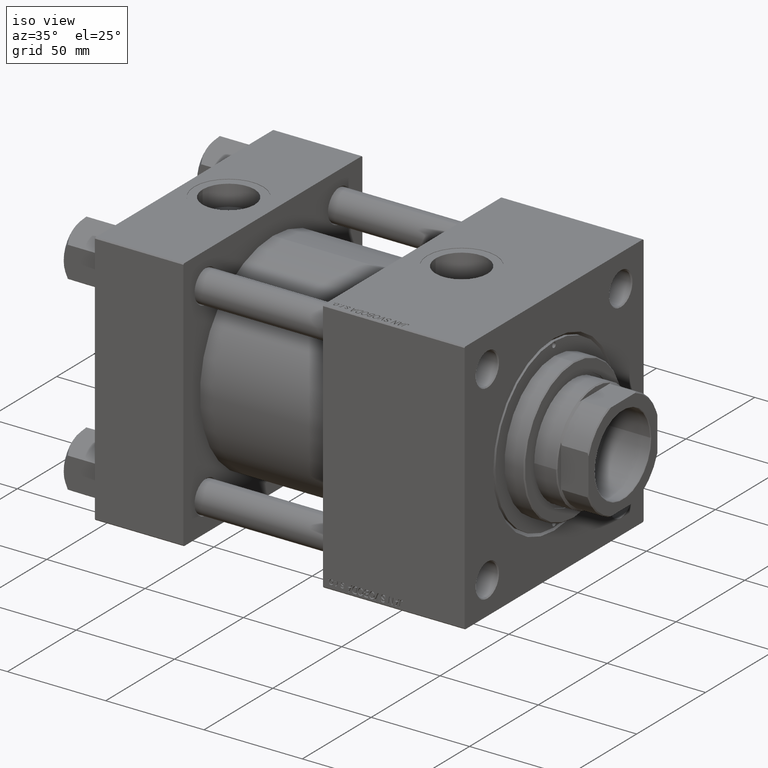
[diagram: clean part render]
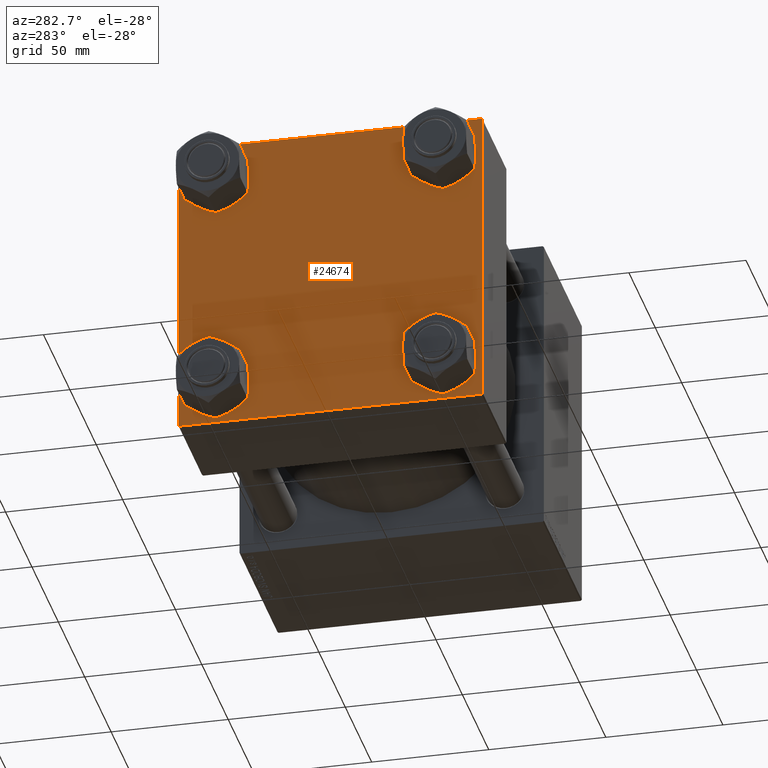
[diagram: tour spotlight — one face highlighted and labeled with its STEP entity id]
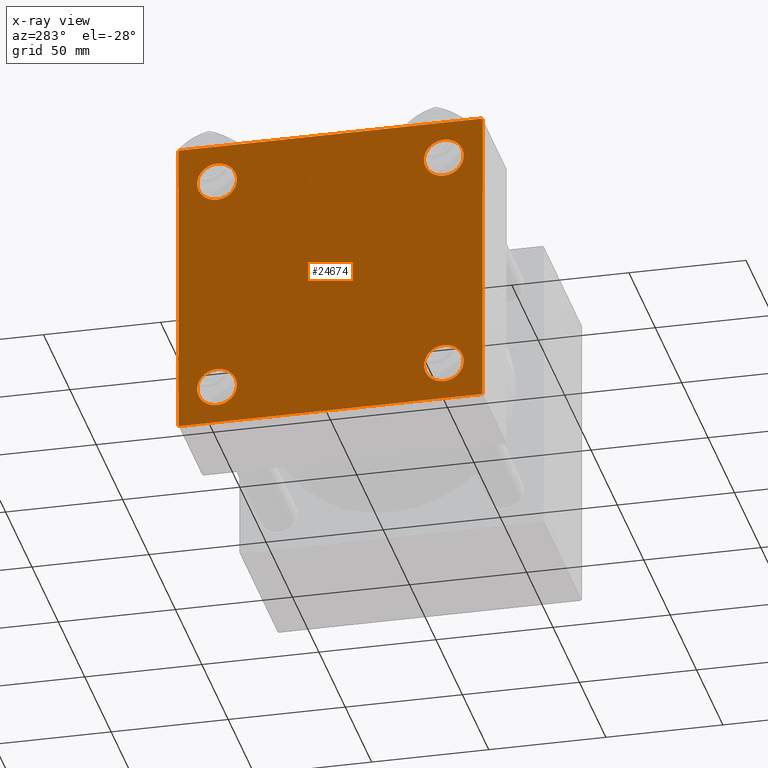
[diagram: x-ray of the same camera — body ghosted, this tour face saturated]
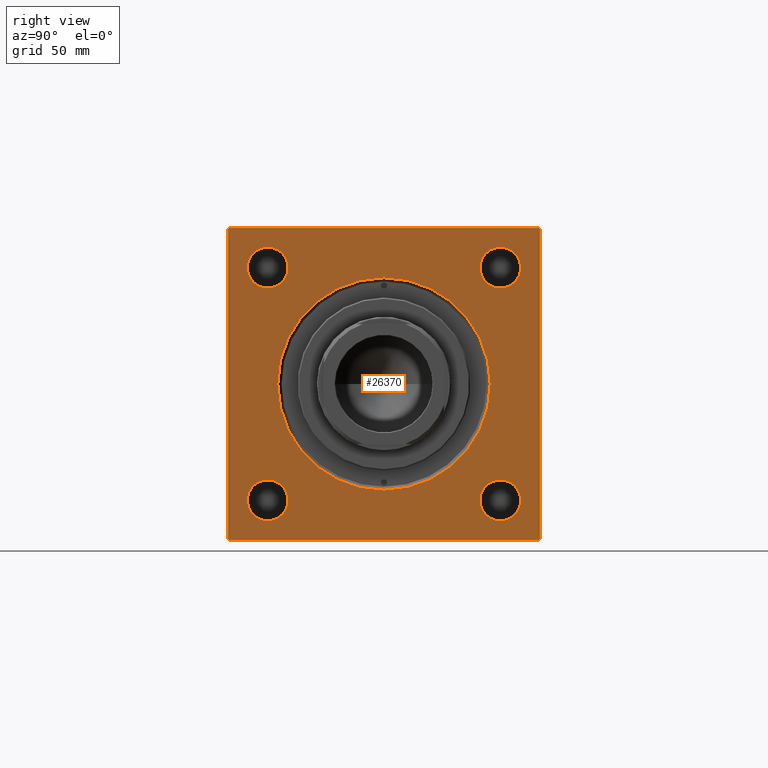
[diagram: tour spotlight — one face highlighted and labeled with its STEP entity id]
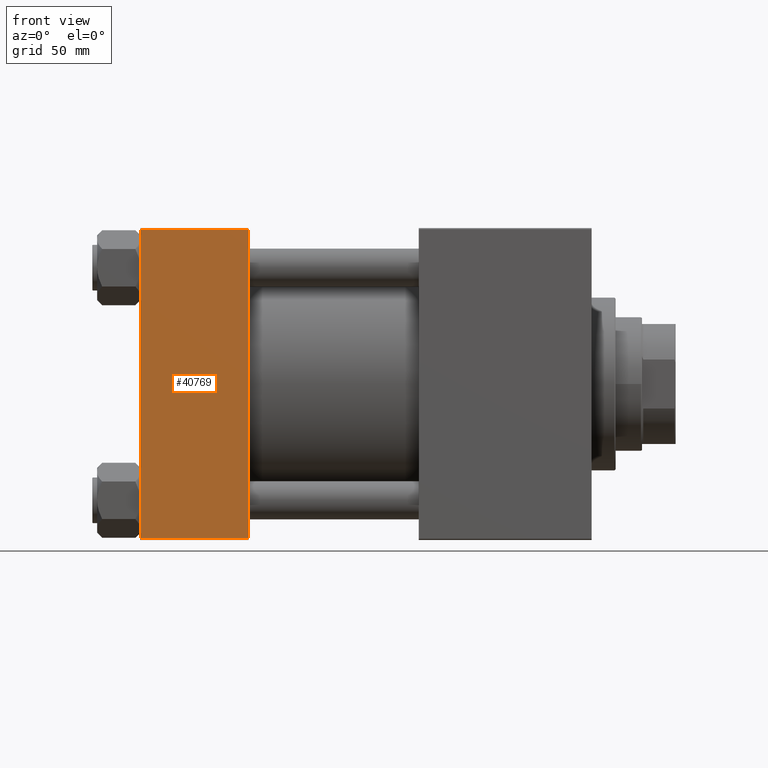
[diagram: tour spotlight — one face highlighted and labeled with its STEP entity id]
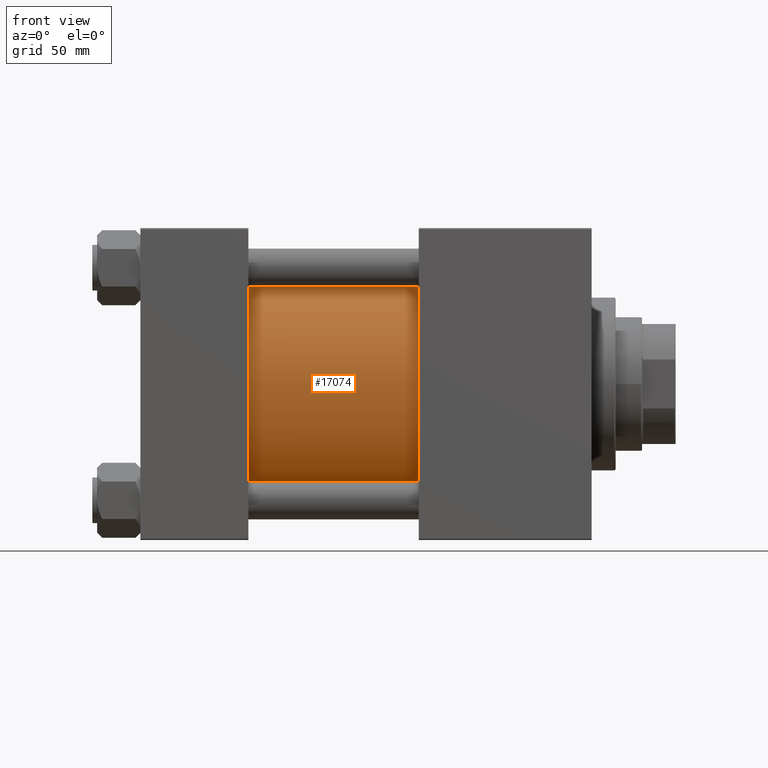
[diagram: tour spotlight — one face highlighted and labeled with its STEP entity id]
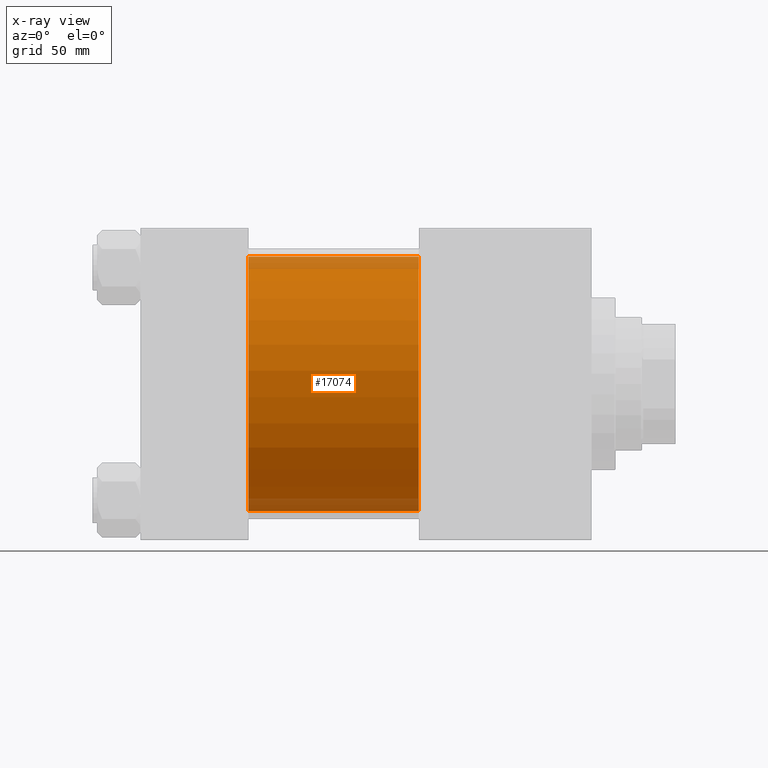
[diagram: x-ray of the same camera — body ghosted, this tour face saturated]
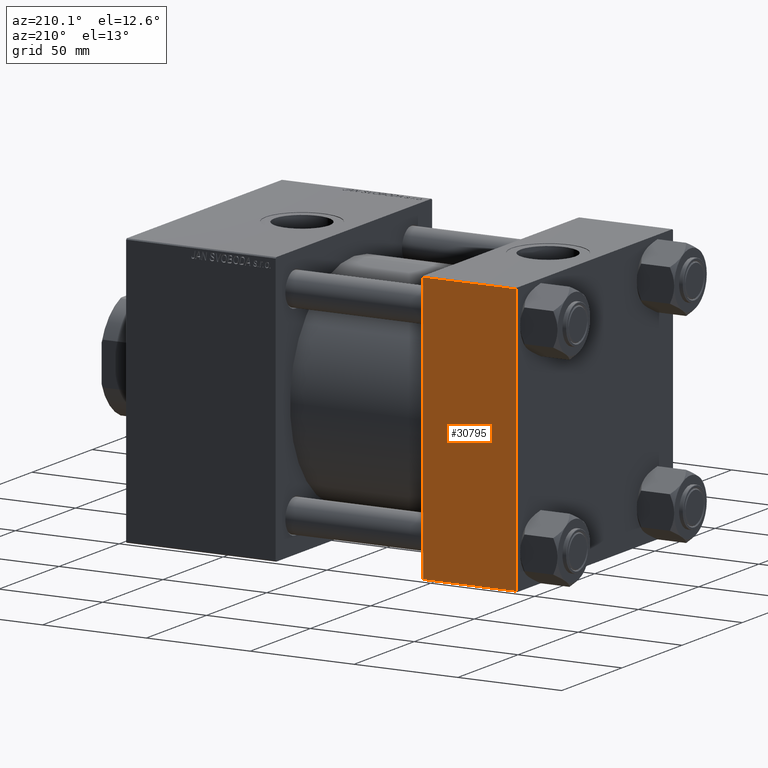
[diagram: tour spotlight — one face highlighted and labeled with its STEP entity id]
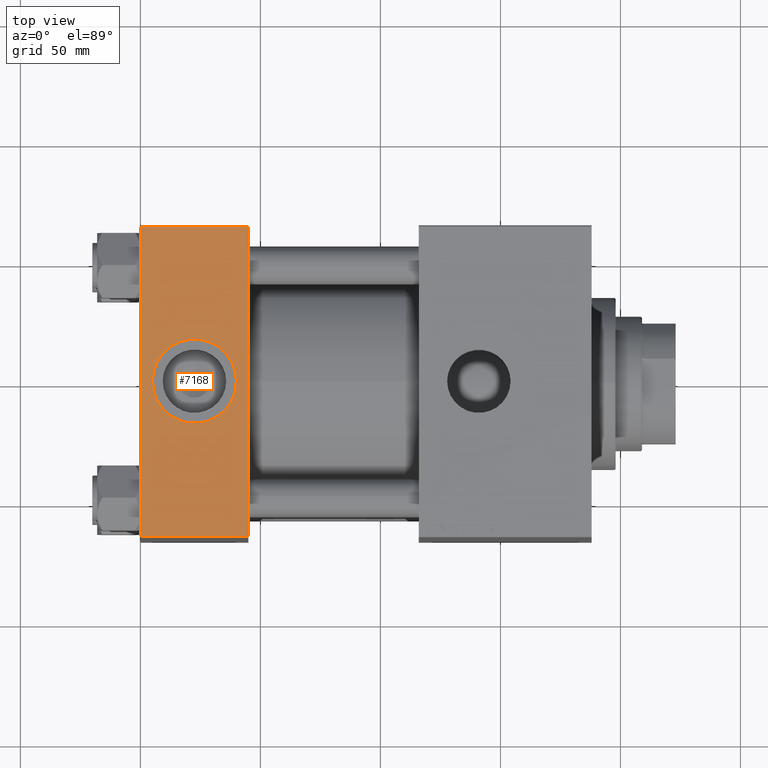
[diagram: tour spotlight — one face highlighted and labeled with its STEP entity id]
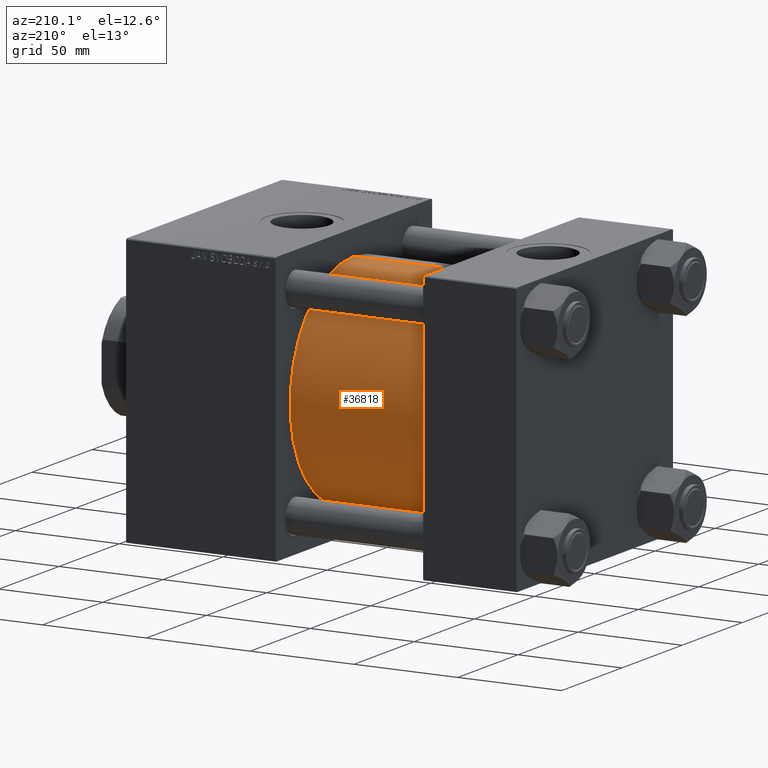
[diagram: tour spotlight — one face highlighted and labeled with its STEP entity id]
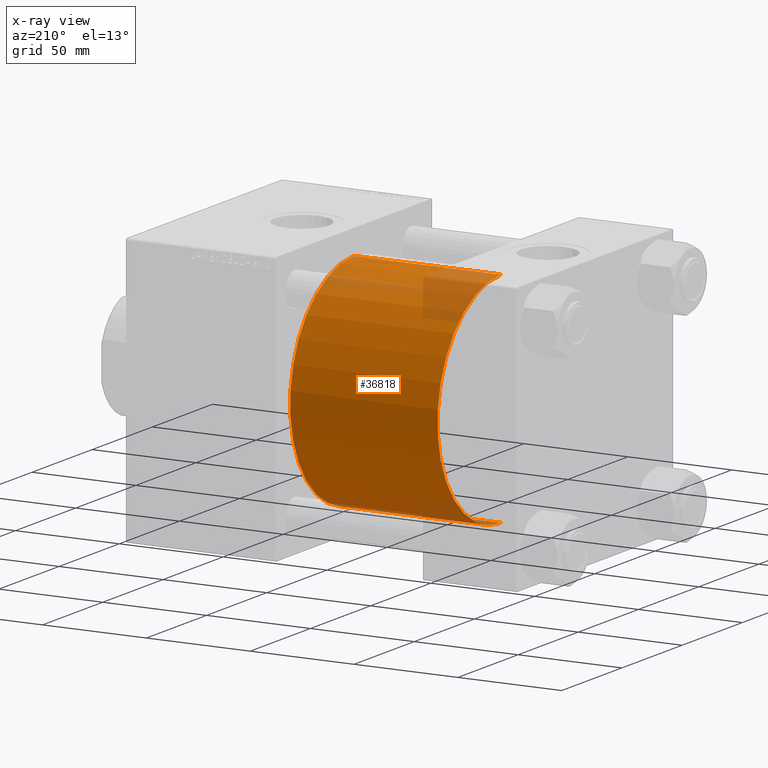
[diagram: x-ray of the same camera — body ghosted, this tour face saturated]
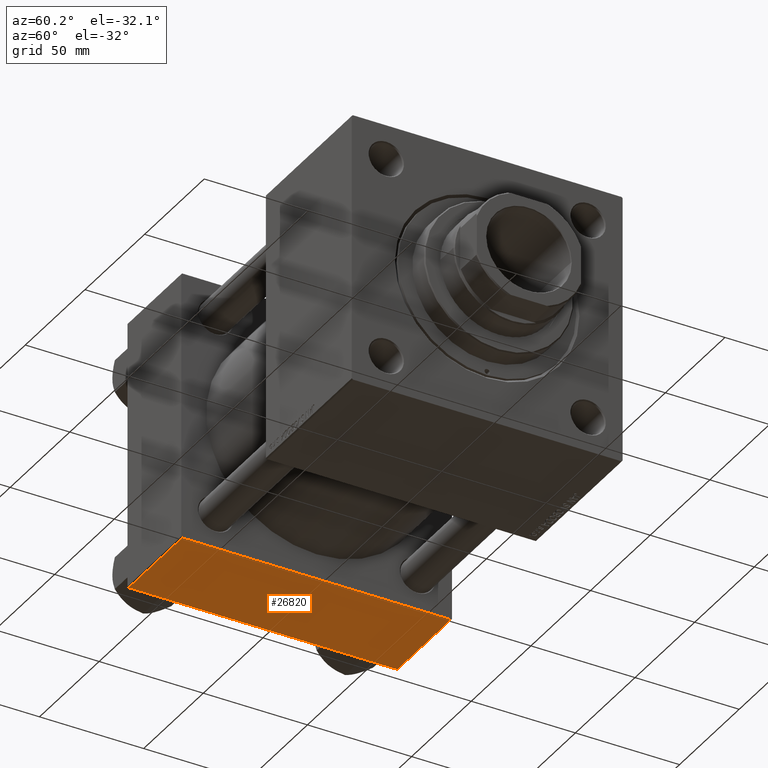
[diagram: tour spotlight — one face highlighted and labeled with its STEP entity id]
A machine part: a face-by-face anatomy tour. The part has 1202 B-rep faces; the first image is the clean iso view, then the 8 largest visible faces are spotlighted one at a time (largest first), each with its STEP entity span.

Face 1 — auxiliary view, entity #24674. An x-ray twin of the same camera follows (body ghosted, this face saturated) — the face is partly hidden behind the body. In plain terms, the highlighted planar face has unit normal (-1, 0, 0).
Definition (entity closure, byte-faithful):
#69 = DIRECTION ( 'NONE',  ( 1.000000000000000000, -0.000000000000000000, 0.000000000000000000 ) ) ;
#711 = DIRECTION ( 'NONE',  ( 1.000000000000000000, -0.000000000000000000, 0.000000000000000000 ) ) ;
#1310 = AXIS2_PLACEMENT_3D ( 'NONE', #46534, #11059, #3825 ) ;
#2402 = DIRECTION ( 'NONE',  ( -1.000000000000000000, 0.000000000000000000, -0.000000000000000000 ) ) ;
#3391 = CARTESIAN_POINT ( 'NONE',  ( 0.000000000000000000, -48.44999999999999574, -39.95000000000001705 ) ) ;
#3596 = DIRECTION ( 'NONE',  ( 1.000000000000000000, -0.000000000000000000, 0.000000000000000000 ) ) ;
#3743 = VECTOR ( 'NONE', #4455, 1000.000000000000000 ) ;
#3825 = DIRECTION ( 'NONE',  ( 0.000000000000000000, 0.000000000000000000, 1.000000000000000000 ) ) ;
#3926 = ORIENTED_EDGE ( 'NONE', *, *, #19025, .T. ) ;
#4237 = FACE_OUTER_BOUND ( 'NONE', #22528, .T. ) ;
#4308 = EDGE_CURVE ( 'NONE', #21398, #5108, #8317, .T. ) ;
#4455 = DIRECTION ( 'NONE',  ( 0.000000000000000000, 0.000000000000000000, -1.000000000000000000 ) ) ;
#4706 = EDGE_CURVE ( 'NONE', #24267, #15723, #35669, .T. ) ;
#5108 = VERTEX_POINT ( 'NONE', #44592 ) ;
#5130 = DIRECTION ( 'NONE',  ( 0.000000000000000000, -1.000000000000000000, -1.067522139062650425E-16 ) ) ;
#5341 = DIRECTION ( 'NONE',  ( 0.000000000000000000, -1.000000000000000000, -1.067522139062650425E-16 ) ) ;
#5390 = VECTOR ( 'NONE', #5341, 1000.000000000000000 ) ;
#5490 = CIRCLE ( 'NONE', #16157, 8.500000000000007105 ) ;
#5634 = EDGE_CURVE ( 'NONE', #21184, #8814, #48062, .T. ) ;
#5972 = ORIENTED_EDGE ( 'NONE', *, *, #28461, .T. ) ;
#6277 = EDGE_CURVE ( 'NONE', #47337, #13181, #34940, .T. ) ;
#6815 = AXIS2_PLACEMENT_3D ( 'NONE', #45732, #26437, #18709 ) ;
#6967 = DIRECTION ( 'NONE',  ( 0.000000000000000000, 0.000000000000000000, 1.000000000000000000 ) ) ;
#8317 = LINE ( 'NONE', #11414, #37332 ) ;
#8381 = DIRECTION ( 'NONE',  ( 0.000000000000000000, 0.000000000000000000, 1.000000000000000000 ) ) ;
#8415 = DIRECTION ( 'NONE',  ( 0.000000000000000000, 0.000000000000000000, 1.000000000000000000 ) ) ;
#8690 = AXIS2_PLACEMENT_3D ( 'NONE', #25809, #2402, #14245 ) ;
#8801 = VERTEX_POINT ( 'NONE', #29081 ) ;
#8814 = VERTEX_POINT ( 'NONE', #38552 ) ;
#9132 = FACE_BOUND ( 'NONE', #44782, .T. ) ;
#9452 = VERTEX_POINT ( 'NONE', #42731 ) ;
#10029 = VERTEX_POINT ( 'NONE', #46728 ) ;
#11032 = ORIENTED_EDGE ( 'NONE', *, *, #5634, .T. ) ;
#11059 = DIRECTION ( 'NONE',  ( 1.000000000000000000, -0.000000000000000000, 0.000000000000000000 ) ) ;
#11414 = CARTESIAN_POINT ( 'NONE',  ( 0.000000000000000000, 64.74999999999998579, 64.74999999999998579 ) ) ;
#11584 = EDGE_LOOP ( 'NONE', ( #11032, #5972 ) ) ;
#11863 = EDGE_CURVE ( 'NONE', #48390, #39491, #26900, .T. ) ;
#12193 = VERTEX_POINT ( 'NONE', #12890 ) ;
#12519 = DIRECTION ( 'NONE',  ( -0.000000000000000000, -0.7071067811865474617, -0.7071067811865474617 ) ) ;
#12890 = CARTESIAN_POINT ( 'NONE',  ( 0.000000000000000000, 48.45000000000000995, 56.95000000000002416 ) ) ;
#13023 = LINE ( 'NONE', #28205, #22956 ) ;
#13181 = VERTEX_POINT ( 'NONE', #22720 ) ;
#13931 = AXIS2_PLACEMENT_3D ( 'NONE', #43909, #711, #47253 ) ;
#14245 = DIRECTION ( 'NONE',  ( -0.000000000000000000, 0.000000000000000000, 1.000000000000000000 ) ) ;
#14383 = VERTEX_POINT ( 'NONE', #36817 ) ;
#15161 = ORIENTED_EDGE ( 'NONE', *, *, #20247, .T. ) ;
#15723 = VERTEX_POINT ( 'NONE', #42816 ) ;
#15894 = VECTOR ( 'NONE', #27204, 1000.000000000000000 ) ;
#16114 = CARTESIAN_POINT ( 'NONE',  ( -0.000000000000000000, -64.74999999999819522, 64.75000000000179057 ) ) ;
#16120 = CARTESIAN_POINT ( 'NONE',  ( 0.000000000000000000, 48.45000000000000995, 48.45000000000001705 ) ) ;
#16157 = AXIS2_PLACEMENT_3D ( 'NONE', #50849, #43620, #8381 ) ;
#16316 = PLANE ( 'NONE',  #8690 ) ;
#18398 = EDGE_CURVE ( 'NONE', #13181, #47337, #29003, .T. ) ;
#18709 = DIRECTION ( 'NONE',  ( 0.000000000000000000, 0.000000000000000000, 1.000000000000000000 ) ) ;
#18863 = VERTEX_POINT ( 'NONE', #29608 ) ;
#19025 = EDGE_CURVE ( 'NONE', #9452, #8801, #30617, .T. ) ;
#19193 = EDGE_CURVE ( 'NONE', #8801, #14383, #26184, .T. ) ;
#20247 = EDGE_CURVE ( 'NONE', #12193, #10029, #32380, .T. ) ;
#20479 = CARTESIAN_POINT ( 'NONE',  ( 0.000000000000000000, -65.00000000000000000, 64.50000000000000000 ) ) ;
#20503 = ORIENTED_EDGE ( 'NONE', *, *, #23797, .F. ) ;
#20858 = AXIS2_PLACEMENT_3D ( 'NONE', #16120, #43138, #8415 ) ;
#20922 = FACE_BOUND ( 'NONE', #21086, .T. ) ;
#21086 = EDGE_LOOP ( 'NONE', ( #15161, #33112 ) ) ;
#21184 = VERTEX_POINT ( 'NONE', #44834 ) ;
#21398 = VERTEX_POINT ( 'NONE', #36324 ) ;
#21661 = ORIENTED_EDGE ( 'NONE', *, *, #19193, .T. ) ;
#22528 = EDGE_LOOP ( 'NONE', ( #41351, #30434, #3926, #21661, #38477, #40735, #20503, #29175 ) ) ;
#22720 = CARTESIAN_POINT ( 'NONE',  ( 0.000000000000000000, 48.45000000000000995, -56.95000000000002416 ) ) ;
#22956 = VECTOR ( 'NONE', #12519, 1000.000000000000114 ) ;
#23129 = CARTESIAN_POINT ( 'NONE',  ( 0.000000000000000000, -48.44999999999999574, 48.45000000000003126 ) ) ;
#23613 = CARTESIAN_POINT ( 'NONE',  ( 0.000000000000000000, -48.44999999999999574, -56.95000000000003837 ) ) ;
#23695 = VECTOR ( 'NONE', #37731, 1000.000000000000000 ) ;
#23701 = DIRECTION ( 'NONE',  ( 0.000000000000000000, 0.000000000000000000, 1.000000000000000000 ) ) ;
#23763 = CIRCLE ( 'NONE', #13931, 8.500000000000007105 ) ;
#23797 = EDGE_CURVE ( 'NONE', #21398, #15723, #39808, .T. ) ;
#23962 = CARTESIAN_POINT ( 'NONE',  ( 0.000000000000000000, 48.45000000000000995, -48.45000000000001705 ) ) ;
#24267 = VERTEX_POINT ( 'NONE', #20479 ) ;
#24674 = ADVANCED_FACE ( 'NONE', ( #32522, #9132, #39471, #20922, #4237 ), #16316, .T. ) ;
#25809 = CARTESIAN_POINT ( 'NONE',  ( 0.000000000000000000, 0.000000000000000000, 0.000000000000000000 ) ) ;
#26184 = LINE ( 'NONE', #30565, #15894 ) ;
#26418 = ORIENTED_EDGE ( 'NONE', *, *, #29984, .T. ) ;
#26437 = DIRECTION ( 'NONE',  ( 1.000000000000000000, -0.000000000000000000, 0.000000000000000000 ) ) ;
#26670 = CARTESIAN_POINT ( 'NONE',  ( 0.000000000000000000, 65.00000000000000000, 65.00000000000001421 ) ) ;
#26900 = CIRCLE ( 'NONE', #31012, 8.500000000000007105 ) ;
#27204 = DIRECTION ( 'NONE',  ( 0.000000000000000000, -0.7071067811865279218, 0.7071067811865671127 ) ) ;
#27708 = EDGE_CURVE ( 'NONE', #5108, #18863, #49332, .T. ) ;
#28038 = ORIENTED_EDGE ( 'NONE', *, *, #18398, .T. ) ;
#28205 = CARTESIAN_POINT ( 'NONE',  ( 0.000000000000000000, 64.74999999999997158, -64.74999999999997158 ) ) ;
#28461 = EDGE_CURVE ( 'NONE', #8814, #21184, #37432, .T. ) ;
#29003 = CIRCLE ( 'NONE', #6815, 8.500000000000007105 ) ;
#29081 = CARTESIAN_POINT ( 'NONE',  ( 0.000000000000000000, -64.49999999999994316, -65.00000000000000000 ) ) ;
#29175 = ORIENTED_EDGE ( 'NONE', *, *, #4308, .T. ) ;
#29608 = CARTESIAN_POINT ( 'NONE',  ( 0.000000000000000000, 65.00000000000000000, -64.49999999999995737 ) ) ;
#29984 = EDGE_CURVE ( 'NONE', #39491, #48390, #5490, .T. ) ;
#30434 = ORIENTED_EDGE ( 'NONE', *, *, #49719, .T. ) ;
#30565 = CARTESIAN_POINT ( 'NONE',  ( 0.000000000000000000, -64.75000000000176215, -64.74999999999816680 ) ) ;
#30617 = LINE ( 'NONE', #46295, #45472 ) ;
#31012 = AXIS2_PLACEMENT_3D ( 'NONE', #39693, #44065, #43814 ) ;
#31614 = AXIS2_PLACEMENT_3D ( 'NONE', #23129, #3596, #6967 ) ;
#32380 = CIRCLE ( 'NONE', #20858, 8.500000000000007105 ) ;
#32522 = FACE_BOUND ( 'NONE', #11584, .T. ) ;
#33112 = ORIENTED_EDGE ( 'NONE', *, *, #45245, .T. ) ;
#34139 = LINE ( 'NONE', #49845, #23695 ) ;
#34940 = CIRCLE ( 'NONE', #44773, 8.500000000000007105 ) ;
#35669 = LINE ( 'NONE', #16114, #49643 ) ;
#35806 = EDGE_CURVE ( 'NONE', #24267, #14383, #34139, .T. ) ;
#36324 = CARTESIAN_POINT ( 'NONE',  ( 0.000000000000000000, 64.49999999999997158, 65.00000000000001421 ) ) ;
#36817 = CARTESIAN_POINT ( 'NONE',  ( 0.000000000000000000, -65.00000000000000000, -64.49999999999991473 ) ) ;
#37332 = VECTOR ( 'NONE', #47395, 1000.000000000000114 ) ;
#37432 = CIRCLE ( 'NONE', #1310, 8.500000000000007105 ) ;
#37731 = DIRECTION ( 'NONE',  ( 0.000000000000000000, 0.000000000000000000, -1.000000000000000000 ) ) ;
#38477 = ORIENTED_EDGE ( 'NONE', *, *, #35806, .F. ) ;
#38552 = CARTESIAN_POINT ( 'NONE',  ( 0.000000000000000000, -48.44999999999999574, 39.95000000000001705 ) ) ;
#39471 = FACE_BOUND ( 'NONE', #44742, .T. ) ;
#39491 = VERTEX_POINT ( 'NONE', #23613 ) ;
#39609 = ORIENTED_EDGE ( 'NONE', *, *, #6277, .T. ) ;
#39693 = CARTESIAN_POINT ( 'NONE',  ( 0.000000000000000000, -48.44999999999999574, -48.45000000000003126 ) ) ;
#39785 = DIRECTION ( 'NONE',  ( -0.000000000000000000, 0.7071067811865672237, 0.7071067811865279218 ) ) ;
#39808 = LINE ( 'NONE', #40319, #5390 ) ;
#40319 = CARTESIAN_POINT ( 'NONE',  ( 0.000000000000000000, 65.00000000000000000, 65.00000000000001421 ) ) ;
#40735 = ORIENTED_EDGE ( 'NONE', *, *, #4706, .T. ) ;
#41351 = ORIENTED_EDGE ( 'NONE', *, *, #27708, .T. ) ;
#42731 = CARTESIAN_POINT ( 'NONE',  ( 0.000000000000000000, 64.49999999999997158, -64.99999999999998579 ) ) ;
#42816 = CARTESIAN_POINT ( 'NONE',  ( 0.000000000000000000, -64.49999999999997158, 65.00000000000000000 ) ) ;
#43138 = DIRECTION ( 'NONE',  ( 1.000000000000000000, -0.000000000000000000, 0.000000000000000000 ) ) ;
#43455 = ORIENTED_EDGE ( 'NONE', *, *, #11863, .T. ) ;
#43620 = DIRECTION ( 'NONE',  ( 1.000000000000000000, -0.000000000000000000, 0.000000000000000000 ) ) ;
#43814 = DIRECTION ( 'NONE',  ( 0.000000000000000000, 0.000000000000000000, 1.000000000000000000 ) ) ;
#43909 = CARTESIAN_POINT ( 'NONE',  ( 0.000000000000000000, 48.45000000000000995, 48.45000000000001705 ) ) ;
#44065 = DIRECTION ( 'NONE',  ( 1.000000000000000000, -0.000000000000000000, 0.000000000000000000 ) ) ;
#44592 = CARTESIAN_POINT ( 'NONE',  ( 0.000000000000000000, 65.00000000000000000, 64.49999999999998579 ) ) ;
#44742 = EDGE_LOOP ( 'NONE', ( #39609, #28038 ) ) ;
#44773 = AXIS2_PLACEMENT_3D ( 'NONE', #23962, #69, #23701 ) ;
#44782 = EDGE_LOOP ( 'NONE', ( #43455, #26418 ) ) ;
#44834 = CARTESIAN_POINT ( 'NONE',  ( 0.000000000000000000, -48.44999999999999574, 56.95000000000003837 ) ) ;
#45245 = EDGE_CURVE ( 'NONE', #10029, #12193, #23763, .T. ) ;
#45472 = VECTOR ( 'NONE', #5130, 1000.000000000000000 ) ;
#45732 = CARTESIAN_POINT ( 'NONE',  ( 0.000000000000000000, 48.45000000000000995, -48.45000000000001705 ) ) ;
#46295 = CARTESIAN_POINT ( 'NONE',  ( 0.000000000000000000, 65.00000000000000000, -64.99999999999998579 ) ) ;
#46532 = CARTESIAN_POINT ( 'NONE',  ( 0.000000000000000000, 48.45000000000000995, -39.95000000000000284 ) ) ;
#46534 = CARTESIAN_POINT ( 'NONE',  ( 0.000000000000000000, -48.44999999999999574, 48.45000000000003126 ) ) ;
#46728 = CARTESIAN_POINT ( 'NONE',  ( 0.000000000000000000, 48.45000000000000995, 39.95000000000000284 ) ) ;
#47253 = DIRECTION ( 'NONE',  ( 0.000000000000000000, 0.000000000000000000, 1.000000000000000000 ) ) ;
#47337 = VERTEX_POINT ( 'NONE', #46532 ) ;
#47395 = DIRECTION ( 'NONE',  ( 0.000000000000000000, 0.7071067811865474617, -0.7071067811865474617 ) ) ;
#48062 = CIRCLE ( 'NONE', #31614, 8.500000000000007105 ) ;
#48390 = VERTEX_POINT ( 'NONE', #3391 ) ;
#49332 = LINE ( 'NONE', #26670, #3743 ) ;
#49643 = VECTOR ( 'NONE', #39785, 1000.000000000000000 ) ;
#49719 = EDGE_CURVE ( 'NONE', #18863, #9452, #13023, .T. ) ;
#49845 = CARTESIAN_POINT ( 'NONE',  ( 0.000000000000000000, -65.00000000000000000, 65.00000000000000000 ) ) ;
#50849 = CARTESIAN_POINT ( 'NONE',  ( 0.000000000000000000, -48.44999999999999574, -48.45000000000003126 ) ) ;

Face 2 — right view, entity #26370. In plain terms, the highlighted planar face has unit normal (-1, 0, 0).
Definition (entity closure, byte-faithful):
#216 = DIRECTION ( 'NONE',  ( -1.000000000000000000, 0.000000000000000000, -0.000000000000000000 ) ) ;
#467 = DIRECTION ( 'NONE',  ( -1.000000000000000000, 0.000000000000000000, -0.000000000000000000 ) ) ;
#688 = LINE ( 'NONE', #4798, #32104 ) ;
#731 = EDGE_LOOP ( 'NONE', ( #1337, #46602 ) ) ;
#951 = EDGE_CURVE ( 'NONE', #13994, #3356, #31457, .T. ) ;
#1337 = ORIENTED_EDGE ( 'NONE', *, *, #16942, .T. ) ;
#1363 = DIRECTION ( 'NONE',  ( -1.000000000000000000, 0.000000000000000000, -0.000000000000000000 ) ) ;
#1465 = CIRCLE ( 'NONE', #7981, 8.499999999999923617 ) ;
#1639 = VECTOR ( 'NONE', #26005, 1000.000000000000000 ) ;
#2672 = ORIENTED_EDGE ( 'NONE', *, *, #15333, .T. ) ;
#2813 = VECTOR ( 'NONE', #42780, 1000.000000000000000 ) ;
#3207 = DIRECTION ( 'NONE',  ( -0.000000000000000000, 0.7071067811865671127, 0.7071067811865279218 ) ) ;
#3322 = CARTESIAN_POINT ( 'NONE',  ( 188.0000000000000000, -64.50000000000008527, 65.00000000000000000 ) ) ;
#3356 = VERTEX_POINT ( 'NONE', #29131 ) ;
#3911 = VERTEX_POINT ( 'NONE', #50841 ) ;
#4242 = EDGE_CURVE ( 'NONE', #34268, #44244, #15500, .T. ) ;
#4798 = CARTESIAN_POINT ( 'NONE',  ( 188.0000000000000000, -64.99999999999998579, 65.00000000000000000 ) ) ;
#5017 = CARTESIAN_POINT ( 'NONE',  ( 188.0000000000000000, -48.45000000000001705, -48.45000000000001705 ) ) ;
#5072 = EDGE_CURVE ( 'NONE', #46401, #44244, #35877, .T. ) ;
#5789 = FACE_BOUND ( 'NONE', #39917, .T. ) ;
#5938 = AXIS2_PLACEMENT_3D ( 'NONE', #26821, #34291, #46614 ) ;
#6134 = VECTOR ( 'NONE', #44101, 1000.000000000000000 ) ;
#6286 = VECTOR ( 'NONE', #8974, 1000.000000000000000 ) ;
#7001 = AXIS2_PLACEMENT_3D ( 'NONE', #17972, #14122, #29820 ) ;
#7981 = AXIS2_PLACEMENT_3D ( 'NONE', #21222, #37454, #33588 ) ;
#8363 = VERTEX_POINT ( 'NONE', #15252 ) ;
#8676 = DIRECTION ( 'NONE',  ( -1.000000000000000000, 0.000000000000000000, -0.000000000000000000 ) ) ;
#8974 = DIRECTION ( 'NONE',  ( 0.000000000000000000, -1.000000000000000000, -1.067522139062650425E-16 ) ) ;
#9163 = CARTESIAN_POINT ( 'NONE',  ( 188.0000000000000000, 48.45000000000000995, -39.95000000000008811 ) ) ;
#9284 = AXIS2_PLACEMENT_3D ( 'NONE', #13040, #8676, #28731 ) ;
#9586 = LINE ( 'NONE', #37853, #25233 ) ;
#9747 = VECTOR ( 'NONE', #10401, 999.9999999999998863 ) ;
#10271 = ORIENTED_EDGE ( 'NONE', *, *, #41458, .T. ) ;
#10401 = DIRECTION ( 'NONE',  ( -0.000000000000000000, -0.7071067811865376918, -0.7071067811865574537 ) ) ;
#10964 = EDGE_CURVE ( 'NONE', #28601, #46885, #9586, .T. ) ;
#11120 = ORIENTED_EDGE ( 'NONE', *, *, #10964, .T. ) ;
#11363 = AXIS2_PLACEMENT_3D ( 'NONE', #20631, #1363, #39935 ) ;
#12306 = VERTEX_POINT ( 'NONE', #49907 ) ;
#12686 = EDGE_LOOP ( 'NONE', ( #37665, #38638 ) ) ;
#12994 = FACE_BOUND ( 'NONE', #12686, .T. ) ;
#13040 = CARTESIAN_POINT ( 'NONE',  ( 188.0000000000000000, 0.000000000000000000, 0.000000000000000000 ) ) ;
#13172 = LINE ( 'NONE', #17783, #1639 ) ;
#13845 = CARTESIAN_POINT ( 'NONE',  ( 188.0000000000000000, 65.00000000000002842, 65.00000000000001421 ) ) ;
#13994 = VERTEX_POINT ( 'NONE', #9163 ) ;
#14122 = DIRECTION ( 'NONE',  ( -1.000000000000000000, 0.000000000000000000, -0.000000000000000000 ) ) ;
#14947 = CARTESIAN_POINT ( 'NONE',  ( 188.0000000000000000, 64.50000000000002842, -64.99999999999998579 ) ) ;
#15128 = DIRECTION ( 'NONE',  ( -1.000000000000000000, 0.000000000000000000, -0.000000000000000000 ) ) ;
#15252 = CARTESIAN_POINT ( 'NONE',  ( 188.0000000000000000, -48.44999999999998153, 56.94999999999991047 ) ) ;
#15333 = EDGE_CURVE ( 'NONE', #35267, #36929, #21941, .T. ) ;
#15375 = CARTESIAN_POINT ( 'NONE',  ( 188.0000000000000000, -48.44999999999998153, 48.44999999999998863 ) ) ;
#15500 = LINE ( 'NONE', #23978, #2813 ) ;
#15644 = EDGE_CURVE ( 'NONE', #8363, #25637, #1465, .T. ) ;
#15875 = DIRECTION ( 'NONE',  ( 0.000000000000000000, 0.000000000000000000, 1.000000000000000000 ) ) ;
#16137 = DIRECTION ( 'NONE',  ( 0.000000000000000000, 0.000000000000000000, 1.000000000000000000 ) ) ;
#16329 = CARTESIAN_POINT ( 'NONE',  ( 188.0000000000000000, 0.000000000000000000, 0.000000000000000000 ) ) ;
#16617 = EDGE_CURVE ( 'NONE', #20714, #3911, #43762, .T. ) ;
#16942 = EDGE_CURVE ( 'NONE', #12306, #48717, #24010, .T. ) ;
#17338 = CIRCLE ( 'NONE', #27906, 8.499999999999923617 ) ;
#17647 = CIRCLE ( 'NONE', #7001, 8.499999999999923617 ) ;
#17783 = CARTESIAN_POINT ( 'NONE',  ( 188.0000000000000000, 65.00000000000002842, 65.00000000000001421 ) ) ;
#17972 = CARTESIAN_POINT ( 'NONE',  ( 188.0000000000000000, 48.45000000000000995, -48.45000000000001705 ) ) ;
#18732 = DIRECTION ( 'NONE',  ( 0.000000000000000000, 0.000000000000000000, 1.000000000000000000 ) ) ;
#19737 = CARTESIAN_POINT ( 'NONE',  ( 188.0000000000000000, 48.45000000000000995, 48.45000000000001705 ) ) ;
#20432 = DIRECTION ( 'NONE',  ( -1.000000000000000000, 0.000000000000000000, -0.000000000000000000 ) ) ;
#20631 = CARTESIAN_POINT ( 'NONE',  ( 188.0000000000000000, 48.45000000000000995, 48.45000000000001705 ) ) ;
#20684 = DIRECTION ( 'NONE',  ( 0.000000000000000000, 0.000000000000000000, 1.000000000000000000 ) ) ;
#20714 = VERTEX_POINT ( 'NONE', #38651 ) ;
#21222 = CARTESIAN_POINT ( 'NONE',  ( 188.0000000000000000, -48.44999999999998153, 48.44999999999998863 ) ) ;
#21261 = EDGE_LOOP ( 'NONE', ( #38393, #36064, #33503, #26273, #50022, #11120, #23937, #48369 ) ) ;
#21941 = CIRCLE ( 'NONE', #40860, 8.499999999999923617 ) ;
#22295 = CARTESIAN_POINT ( 'NONE',  ( 188.0000000000000000, 65.00000000000002842, 64.50000000000001421 ) ) ;
#22718 = EDGE_LOOP ( 'NONE', ( #2672, #45878 ) ) ;
#22737 = LINE ( 'NONE', #31226, #34454 ) ;
#22813 = EDGE_CURVE ( 'NONE', #3356, #13994, #17647, .T. ) ;
#22842 = VERTEX_POINT ( 'NONE', #39281 ) ;
#23702 = CARTESIAN_POINT ( 'NONE',  ( 188.0000000000000000, -48.44999999999998153, 39.95000000000005969 ) ) ;
#23782 = EDGE_CURVE ( 'NONE', #3911, #20714, #41502, .T. ) ;
#23937 = ORIENTED_EDGE ( 'NONE', *, *, #30566, .T. ) ;
#23978 = CARTESIAN_POINT ( 'NONE',  ( 188.0000000000000000, -64.50000000000002842, -65.00000000000001421 ) ) ;
#24010 = CIRCLE ( 'NONE', #32263, 8.499999999999923617 ) ;
#24172 = DIRECTION ( 'NONE',  ( -1.000000000000000000, 0.000000000000000000, -0.000000000000000000 ) ) ;
#24299 = AXIS2_PLACEMENT_3D ( 'NONE', #16329, #20432, #40499 ) ;
#24984 = CARTESIAN_POINT ( 'NONE',  ( 188.0000000000000000, -64.99999999999998579, -64.50000000000002842 ) ) ;
#25233 = VECTOR ( 'NONE', #25254, 1000.000000000000000 ) ;
#25254 = DIRECTION ( 'NONE',  ( 0.000000000000000000, -0.7071067811865279218, 0.7071067811865671127 ) ) ;
#25545 = EDGE_LOOP ( 'NONE', ( #39431, #38008 ) ) ;
#25637 = VERTEX_POINT ( 'NONE', #23702 ) ;
#26005 = DIRECTION ( 'NONE',  ( 0.000000000000000000, 0.000000000000000000, -1.000000000000000000 ) ) ;
#26273 = ORIENTED_EDGE ( 'NONE', *, *, #37057, .T. ) ;
#26370 = ADVANCED_FACE ( 'NONE', ( #28940, #5789, #32031, #12994, #40257, #48744 ), #44115, .F. ) ;
#26821 = CARTESIAN_POINT ( 'NONE',  ( 188.0000000000000000, -48.45000000000001705, -48.45000000000001705 ) ) ;
#27906 = AXIS2_PLACEMENT_3D ( 'NONE', #15375, #15128, #18732 ) ;
#28113 = CIRCLE ( 'NONE', #5938, 8.499999999999923617 ) ;
#28201 = AXIS2_PLACEMENT_3D ( 'NONE', #43753, #24172, #39887 ) ;
#28413 = CARTESIAN_POINT ( 'NONE',  ( 188.0000000000000000, 65.00000000000002842, -64.99999999999998579 ) ) ;
#28601 = VERTEX_POINT ( 'NONE', #22295 ) ;
#28731 = DIRECTION ( 'NONE',  ( 0.000000000000000000, 0.000000000000000000, 1.000000000000000000 ) ) ;
#28940 = FACE_BOUND ( 'NONE', #22718, .T. ) ;
#29131 = CARTESIAN_POINT ( 'NONE',  ( 188.0000000000000000, 48.45000000000000995, -56.94999999999993889 ) ) ;
#29820 = DIRECTION ( 'NONE',  ( 0.000000000000000000, 0.000000000000000000, 1.000000000000000000 ) ) ;
#30566 = EDGE_CURVE ( 'NONE', #46885, #47351, #44201, .T. ) ;
#31071 = CIRCLE ( 'NONE', #11363, 8.499999999999923617 ) ;
#31226 = CARTESIAN_POINT ( 'NONE',  ( 188.0000000000000000, 65.00000000000002842, -64.50000000000001421 ) ) ;
#31457 = CIRCLE ( 'NONE', #28201, 8.499999999999923617 ) ;
#32031 = FACE_BOUND ( 'NONE', #731, .T. ) ;
#32061 = DIRECTION ( 'NONE',  ( 0.000000000000000000, 0.000000000000000000, -1.000000000000000000 ) ) ;
#32104 = VECTOR ( 'NONE', #32061, 1000.000000000000000 ) ;
#32263 = AXIS2_PLACEMENT_3D ( 'NONE', #5017, #40241, #20684 ) ;
#32306 = CARTESIAN_POINT ( 'NONE',  ( 188.0000000000000000, -48.45000000000001705, -39.95000000000008811 ) ) ;
#32563 = CARTESIAN_POINT ( 'NONE',  ( 188.0000000000000000, 48.45000000000000995, 56.94999999999993889 ) ) ;
#33503 = ORIENTED_EDGE ( 'NONE', *, *, #5072, .F. ) ;
#33588 = DIRECTION ( 'NONE',  ( 0.000000000000000000, 0.000000000000000000, 1.000000000000000000 ) ) ;
#33769 = CARTESIAN_POINT ( 'NONE',  ( 188.0000000000000000, 65.00000000000002842, -64.50000000000001421 ) ) ;
#33994 = CARTESIAN_POINT ( 'NONE',  ( 188.0000000000000000, 48.45000000000000995, 39.95000000000008811 ) ) ;
#34090 = EDGE_CURVE ( 'NONE', #47351, #22842, #42260, .T. ) ;
#34268 = VERTEX_POINT ( 'NONE', #24984 ) ;
#34284 = EDGE_CURVE ( 'NONE', #36929, #35267, #31071, .T. ) ;
#34291 = DIRECTION ( 'NONE',  ( -1.000000000000000000, 0.000000000000000000, -0.000000000000000000 ) ) ;
#34454 = VECTOR ( 'NONE', #3207, 1000.000000000000000 ) ;
#34887 = CARTESIAN_POINT ( 'NONE',  ( 188.0000000000000000, 64.50000000000005684, 65.00000000000001421 ) ) ;
#35267 = VERTEX_POINT ( 'NONE', #33994 ) ;
#35877 = LINE ( 'NONE', #28413, #6134 ) ;
#36064 = ORIENTED_EDGE ( 'NONE', *, *, #4242, .T. ) ;
#36929 = VERTEX_POINT ( 'NONE', #32563 ) ;
#37057 = EDGE_CURVE ( 'NONE', #46401, #43830, #22737, .T. ) ;
#37454 = DIRECTION ( 'NONE',  ( -1.000000000000000000, 0.000000000000000000, -0.000000000000000000 ) ) ;
#37665 = ORIENTED_EDGE ( 'NONE', *, *, #22813, .T. ) ;
#37820 = CARTESIAN_POINT ( 'NONE',  ( 188.0000000000000000, -64.50000000000002842, -65.00000000000001421 ) ) ;
#37853 = CARTESIAN_POINT ( 'NONE',  ( 188.0000000000000000, 64.50000000000005684, 65.00000000000001421 ) ) ;
#38008 = ORIENTED_EDGE ( 'NONE', *, *, #23782, .T. ) ;
#38393 = ORIENTED_EDGE ( 'NONE', *, *, #49702, .T. ) ;
#38409 = CARTESIAN_POINT ( 'NONE',  ( 188.0000000000000000, -64.99999999999998579, 64.50000000000008527 ) ) ;
#38638 = ORIENTED_EDGE ( 'NONE', *, *, #951, .T. ) ;
#38651 = CARTESIAN_POINT ( 'NONE',  ( 188.0000000000000000, 0.000000000000000000, -44.24999999999998579 ) ) ;
#39038 = AXIS2_PLACEMENT_3D ( 'NONE', #39041, #467, #16137 ) ;
#39041 = CARTESIAN_POINT ( 'NONE',  ( 188.0000000000000000, 0.000000000000000000, 0.000000000000000000 ) ) ;
#39281 = CARTESIAN_POINT ( 'NONE',  ( 188.0000000000000000, -64.99999999999998579, 64.50000000000008527 ) ) ;
#39431 = ORIENTED_EDGE ( 'NONE', *, *, #16617, .T. ) ;
#39887 = DIRECTION ( 'NONE',  ( 0.000000000000000000, 0.000000000000000000, 1.000000000000000000 ) ) ;
#39917 = EDGE_LOOP ( 'NONE', ( #10271, #43144 ) ) ;
#39935 = DIRECTION ( 'NONE',  ( 0.000000000000000000, 0.000000000000000000, 1.000000000000000000 ) ) ;
#40241 = DIRECTION ( 'NONE',  ( -1.000000000000000000, 0.000000000000000000, -0.000000000000000000 ) ) ;
#40257 = FACE_BOUND ( 'NONE', #25545, .T. ) ;
#40499 = DIRECTION ( 'NONE',  ( -0.000000000000000000, 0.000000000000000000, 1.000000000000000000 ) ) ;
#40860 = AXIS2_PLACEMENT_3D ( 'NONE', #19737, #216, #15875 ) ;
#41458 = EDGE_CURVE ( 'NONE', #25637, #8363, #17338, .T. ) ;
#41502 = CIRCLE ( 'NONE', #39038, 44.24999999999998579 ) ;
#42260 = LINE ( 'NONE', #38409, #9747 ) ;
#42780 = DIRECTION ( 'NONE',  ( 0.000000000000000000, 0.7071067811865279218, -0.7071067811865672237 ) ) ;
#43144 = ORIENTED_EDGE ( 'NONE', *, *, #15644, .T. ) ;
#43753 = CARTESIAN_POINT ( 'NONE',  ( 188.0000000000000000, 48.45000000000000995, -48.45000000000001705 ) ) ;
#43762 = CIRCLE ( 'NONE', #9284, 44.24999999999998579 ) ;
#43830 = VERTEX_POINT ( 'NONE', #33769 ) ;
#44101 = DIRECTION ( 'NONE',  ( 0.000000000000000000, -1.000000000000000000, -2.135044278125300850E-16 ) ) ;
#44115 = PLANE ( 'NONE',  #24299 ) ;
#44201 = LINE ( 'NONE', #13845, #6286 ) ;
#44244 = VERTEX_POINT ( 'NONE', #37820 ) ;
#44705 = EDGE_CURVE ( 'NONE', #48717, #12306, #28113, .T. ) ;
#45492 = EDGE_CURVE ( 'NONE', #28601, #43830, #13172, .T. ) ;
#45878 = ORIENTED_EDGE ( 'NONE', *, *, #34284, .T. ) ;
#46401 = VERTEX_POINT ( 'NONE', #14947 ) ;
#46602 = ORIENTED_EDGE ( 'NONE', *, *, #44705, .T. ) ;
#46614 = DIRECTION ( 'NONE',  ( 0.000000000000000000, 0.000000000000000000, 1.000000000000000000 ) ) ;
#46885 = VERTEX_POINT ( 'NONE', #34887 ) ;
#47351 = VERTEX_POINT ( 'NONE', #3322 ) ;
#48369 = ORIENTED_EDGE ( 'NONE', *, *, #34090, .T. ) ;
#48717 = VERTEX_POINT ( 'NONE', #32306 ) ;
#48744 = FACE_OUTER_BOUND ( 'NONE', #21261, .T. ) ;
#49702 = EDGE_CURVE ( 'NONE', #22842, #34268, #688, .T. ) ;
#49907 = CARTESIAN_POINT ( 'NONE',  ( 188.0000000000000000, -48.45000000000001705, -56.94999999999993889 ) ) ;
#50022 = ORIENTED_EDGE ( 'NONE', *, *, #45492, .F. ) ;
#50841 = CARTESIAN_POINT ( 'NONE',  ( 188.0000000000000000, 5.419062086227035828E-15, 44.24999999999998579 ) ) ;

Face 3 — front view, entity #40769. In plain terms, the highlighted planar face has unit normal (0, 1, 0).
Definition (entity closure, byte-faithful):
#1709 = EDGE_CURVE ( 'NONE', #34447, #24267, #10894, .T. ) ;
#1977 = PLANE ( 'NONE',  #17304 ) ;
#2483 = CARTESIAN_POINT ( 'NONE',  ( 45.00000000000000000, -65.00000000000000000, 65.00000000000000000 ) ) ;
#6136 = ORIENTED_EDGE ( 'NONE', *, *, #1709, .T. ) ;
#8435 = CARTESIAN_POINT ( 'NONE',  ( 45.00000000000000000, -65.00000000000000000, 64.50000000000000000 ) ) ;
#9450 = FACE_OUTER_BOUND ( 'NONE', #23465, .T. ) ;
#9936 = VECTOR ( 'NONE', #11377, 1000.000000000000000 ) ;
#9961 = DIRECTION ( 'NONE',  ( -0.000000000000000000, 1.000000000000000000, 0.000000000000000000 ) ) ;
#10894 = LINE ( 'NONE', #50257, #11061 ) ;
#11061 = VECTOR ( 'NONE', #14492, 1000.000000000000000 ) ;
#11377 = DIRECTION ( 'NONE',  ( 0.000000000000000000, 0.000000000000000000, -1.000000000000000000 ) ) ;
#11992 = ORIENTED_EDGE ( 'NONE', *, *, #40167, .F. ) ;
#14383 = VERTEX_POINT ( 'NONE', #36817 ) ;
#14492 = DIRECTION ( 'NONE',  ( -1.000000000000000000, 0.000000000000000000, 0.000000000000000000 ) ) ;
#14695 = CARTESIAN_POINT ( 'NONE',  ( 45.00000000000000000, -65.00000000000000000, -64.49999999999991473 ) ) ;
#17304 = AXIS2_PLACEMENT_3D ( 'NONE', #2483, #9961, #25367 ) ;
#17556 = ORIENTED_EDGE ( 'NONE', *, *, #47499, .T. ) ;
#20479 = CARTESIAN_POINT ( 'NONE',  ( 0.000000000000000000, -65.00000000000000000, 64.50000000000000000 ) ) ;
#22031 = CARTESIAN_POINT ( 'NONE',  ( 45.00000000000000000, -65.00000000000000000, -64.49999999999991473 ) ) ;
#22754 = ORIENTED_EDGE ( 'NONE', *, *, #35806, .T. ) ;
#23173 = LINE ( 'NONE', #46353, #9936 ) ;
#23465 = EDGE_LOOP ( 'NONE', ( #22754, #17556, #11992, #6136 ) ) ;
#23695 = VECTOR ( 'NONE', #37731, 1000.000000000000000 ) ;
#24267 = VERTEX_POINT ( 'NONE', #20479 ) ;
#25367 = DIRECTION ( 'NONE',  ( 0.000000000000000000, -0.000000000000000000, 1.000000000000000000 ) ) ;
#25918 = LINE ( 'NONE', #22031, #48535 ) ;
#34139 = LINE ( 'NONE', #49845, #23695 ) ;
#34447 = VERTEX_POINT ( 'NONE', #8435 ) ;
#35301 = VERTEX_POINT ( 'NONE', #14695 ) ;
#35806 = EDGE_CURVE ( 'NONE', #24267, #14383, #34139, .T. ) ;
#36817 = CARTESIAN_POINT ( 'NONE',  ( 0.000000000000000000, -65.00000000000000000, -64.49999999999991473 ) ) ;
#37731 = DIRECTION ( 'NONE',  ( 0.000000000000000000, 0.000000000000000000, -1.000000000000000000 ) ) ;
#40167 = EDGE_CURVE ( 'NONE', #34447, #35301, #23173, .T. ) ;
#40769 = ADVANCED_FACE ( 'NONE', ( #9450 ), #1977, .F. ) ;
#46353 = CARTESIAN_POINT ( 'NONE',  ( 45.00000000000000000, -65.00000000000000000, 65.00000000000000000 ) ) ;
#46481 = DIRECTION ( 'NONE',  ( 1.000000000000000000, 0.000000000000000000, 0.000000000000000000 ) ) ;
#47499 = EDGE_CURVE ( 'NONE', #14383, #35301, #25918, .T. ) ;
#48535 = VECTOR ( 'NONE', #46481, 1000.000000000000000 ) ;
#49845 = CARTESIAN_POINT ( 'NONE',  ( 0.000000000000000000, -65.00000000000000000, 65.00000000000000000 ) ) ;
#50257 = CARTESIAN_POINT ( 'NONE',  ( 45.00000000000000000, -65.00000000000000000, 64.50000000000000000 ) ) ;

Face 4 — front view, entity #17074. An x-ray twin of the same camera follows (body ghosted, this face saturated) — the face is partly hidden behind the body. In plain terms, the highlighted cylindrical surface (partial cylindrical patch) has radius 53 mm, axis along (-1, -0, -0).
Definition (entity closure, byte-faithful):
#705 = DIRECTION ( 'NONE',  ( 1.000000000000000000, -0.000000000000000000, 0.000000000000000000 ) ) ;
#843 = LINE ( 'NONE', #8819, #33937 ) ;
#1695 = VERTEX_POINT ( 'NONE', #22441 ) ;
#2388 = ORIENTED_EDGE ( 'NONE', *, *, #18111, .F. ) ;
#2562 = CARTESIAN_POINT ( 'NONE',  ( 45.00000000000000000, -2.602085213965210642E-15, 53.00000000000000711 ) ) ;
#8675 = DIRECTION ( 'NONE',  ( 0.000000000000000000, 0.000000000000000000, 1.000000000000000000 ) ) ;
#8819 = CARTESIAN_POINT ( 'NONE',  ( 115.9999999999999858, 3.888542821515762466E-15, -53.00000000000000711 ) ) ;
#9500 = VERTEX_POINT ( 'NONE', #32434 ) ;
#10134 = DIRECTION ( 'NONE',  ( 0.000000000000000000, 0.000000000000000000, 1.000000000000000000 ) ) ;
#11428 = VERTEX_POINT ( 'NONE', #2562 ) ;
#11531 = EDGE_CURVE ( 'NONE', #40081, #1695, #35906, .T. ) ;
#14860 = LINE ( 'NONE', #46492, #35551 ) ;
#14965 = ORIENTED_EDGE ( 'NONE', *, *, #24249, .T. ) ;
#16376 = CARTESIAN_POINT ( 'NONE',  ( 45.00000000000000000, -2.602085213965210642E-15, 0.000000000000000000 ) ) ;
#16598 = CARTESIAN_POINT ( 'NONE',  ( 115.9999999999999858, -2.602085213965210642E-15, 0.000000000000000000 ) ) ;
#17074 = ADVANCED_FACE ( 'NONE', ( #44844 ), #45360, .T. ) ;
#18111 = EDGE_CURVE ( 'NONE', #1695, #9500, #843, .T. ) ;
#18409 = EDGE_CURVE ( 'NONE', #40081, #11428, #14860, .T. ) ;
#18542 = AXIS2_PLACEMENT_3D ( 'NONE', #16376, #705, #8675 ) ;
#20284 = ORIENTED_EDGE ( 'NONE', *, *, #11531, .F. ) ;
#21158 = CARTESIAN_POINT ( 'NONE',  ( 115.9999999999999858, -2.602085213965210642E-15, 53.00000000000000711 ) ) ;
#22441 = CARTESIAN_POINT ( 'NONE',  ( 115.9999999999999858, 3.888542821515762466E-15, -53.00000000000000711 ) ) ;
#22951 = ORIENTED_EDGE ( 'NONE', *, *, #18409, .T. ) ;
#24249 = EDGE_CURVE ( 'NONE', #11428, #9500, #49788, .T. ) ;
#25677 = AXIS2_PLACEMENT_3D ( 'NONE', #37644, #37148, #10134 ) ;
#30187 = EDGE_LOOP ( 'NONE', ( #2388, #20284, #22951, #14965 ) ) ;
#32434 = CARTESIAN_POINT ( 'NONE',  ( 45.00000000000000000, 3.888542821515762466E-15, -53.00000000000000711 ) ) ;
#33937 = VECTOR ( 'NONE', #35556, 1000.000000000000000 ) ;
#35551 = VECTOR ( 'NONE', #42117, 1000.000000000000000 ) ;
#35556 = DIRECTION ( 'NONE',  ( -1.000000000000000000, -0.000000000000000000, -0.000000000000000000 ) ) ;
#35906 = CIRCLE ( 'NONE', #42460, 53.00000000000000711 ) ;
#36162 = DIRECTION ( 'NONE',  ( 1.000000000000000000, 0.000000000000000000, 0.000000000000000000 ) ) ;
#37148 = DIRECTION ( 'NONE',  ( -1.000000000000000000, -0.000000000000000000, -0.000000000000000000 ) ) ;
#37644 = CARTESIAN_POINT ( 'NONE',  ( 115.9999999999999858, -2.602085213965210642E-15, 0.000000000000000000 ) ) ;
#40081 = VERTEX_POINT ( 'NONE', #21158 ) ;
#42117 = DIRECTION ( 'NONE',  ( -1.000000000000000000, -0.000000000000000000, -0.000000000000000000 ) ) ;
#42460 = AXIS2_PLACEMENT_3D ( 'NONE', #16598, #36162, #48513 ) ;
#44844 = FACE_OUTER_BOUND ( 'NONE', #30187, .T. ) ;
#45360 = CYLINDRICAL_SURFACE ( 'NONE', #25677, 53.00000000000000711 ) ;
#46492 = CARTESIAN_POINT ( 'NONE',  ( 115.9999999999999858, -2.602085213965210642E-15, 53.00000000000000711 ) ) ;
#48513 = DIRECTION ( 'NONE',  ( 0.000000000000000000, 0.000000000000000000, -1.000000000000000000 ) ) ;
#49788 = CIRCLE ( 'NONE', #18542, 53.00000000000000711 ) ;

Face 5 — auxiliary view, entity #30795. In plain terms, the highlighted planar face has unit normal (0, 1, 0).
Definition (entity closure, byte-faithful):
#154 = VERTEX_POINT ( 'NONE', #30835 ) ;
#637 = ORIENTED_EDGE ( 'NONE', *, *, #49397, .T. ) ;
#2497 = LINE ( 'NONE', #37728, #32864 ) ;
#3743 = VECTOR ( 'NONE', #4455, 1000.000000000000000 ) ;
#4455 = DIRECTION ( 'NONE',  ( 0.000000000000000000, 0.000000000000000000, -1.000000000000000000 ) ) ;
#5108 = VERTEX_POINT ( 'NONE', #44592 ) ;
#6303 = VERTEX_POINT ( 'NONE', #27327 ) ;
#10341 = VECTOR ( 'NONE', #42633, 1000.000000000000000 ) ;
#13490 = ORIENTED_EDGE ( 'NONE', *, *, #27708, .F. ) ;
#14513 = AXIS2_PLACEMENT_3D ( 'NONE', #32560, #36935, #21206 ) ;
#15857 = LINE ( 'NONE', #23576, #10341 ) ;
#17121 = FACE_OUTER_BOUND ( 'NONE', #40154, .T. ) ;
#18199 = DIRECTION ( 'NONE',  ( -1.000000000000000000, 0.000000000000000000, 0.000000000000000000 ) ) ;
#18863 = VERTEX_POINT ( 'NONE', #29608 ) ;
#21206 = DIRECTION ( 'NONE',  ( 0.000000000000000000, -0.000000000000000000, 1.000000000000000000 ) ) ;
#23576 = CARTESIAN_POINT ( 'NONE',  ( 45.00000000000000000, 65.00000000000000000, 64.49999999999998579 ) ) ;
#25023 = EDGE_CURVE ( 'NONE', #5108, #154, #15857, .T. ) ;
#26670 = CARTESIAN_POINT ( 'NONE',  ( 0.000000000000000000, 65.00000000000000000, 65.00000000000001421 ) ) ;
#27327 = CARTESIAN_POINT ( 'NONE',  ( 45.00000000000000000, 65.00000000000000000, -64.49999999999995737 ) ) ;
#27708 = EDGE_CURVE ( 'NONE', #5108, #18863, #49332, .T. ) ;
#29608 = CARTESIAN_POINT ( 'NONE',  ( 0.000000000000000000, 65.00000000000000000, -64.49999999999995737 ) ) ;
#30795 = ADVANCED_FACE ( 'NONE', ( #17121 ), #48256, .T. ) ;
#30835 = CARTESIAN_POINT ( 'NONE',  ( 45.00000000000000000, 65.00000000000000000, 64.49999999999998579 ) ) ;
#32560 = CARTESIAN_POINT ( 'NONE',  ( 45.00000000000000000, 65.00000000000000000, 65.00000000000001421 ) ) ;
#32864 = VECTOR ( 'NONE', #44938, 1000.000000000000000 ) ;
#36935 = DIRECTION ( 'NONE',  ( -0.000000000000000000, 1.000000000000000000, 0.000000000000000000 ) ) ;
#37256 = CARTESIAN_POINT ( 'NONE',  ( 45.00000000000000000, 65.00000000000000000, -64.49999999999995737 ) ) ;
#37507 = LINE ( 'NONE', #37256, #43631 ) ;
#37728 = CARTESIAN_POINT ( 'NONE',  ( 45.00000000000000000, 65.00000000000000000, 65.00000000000001421 ) ) ;
#39399 = ORIENTED_EDGE ( 'NONE', *, *, #42424, .T. ) ;
#40154 = EDGE_LOOP ( 'NONE', ( #39399, #637, #13490, #48258 ) ) ;
#42424 = EDGE_CURVE ( 'NONE', #154, #6303, #2497, .T. ) ;
#42633 = DIRECTION ( 'NONE',  ( 1.000000000000000000, 0.000000000000000000, 0.000000000000000000 ) ) ;
#43631 = VECTOR ( 'NONE', #18199, 1000.000000000000000 ) ;
#44592 = CARTESIAN_POINT ( 'NONE',  ( 0.000000000000000000, 65.00000000000000000, 64.49999999999998579 ) ) ;
#44938 = DIRECTION ( 'NONE',  ( 0.000000000000000000, 0.000000000000000000, -1.000000000000000000 ) ) ;
#48256 = PLANE ( 'NONE',  #14513 ) ;
#48258 = ORIENTED_EDGE ( 'NONE', *, *, #25023, .T. ) ;
#49332 = LINE ( 'NONE', #26670, #3743 ) ;
#49397 = EDGE_CURVE ( 'NONE', #6303, #18863, #37507, .T. ) ;

Face 6 — top view, entity #7168. In plain terms, the highlighted planar face has unit normal (0, 0, -1).
Definition (entity closure, byte-faithful):
#1186 = CARTESIAN_POINT ( 'NONE',  ( 45.00000000000000000, -64.49999999999997158, 65.00000000000000000 ) ) ;
#1511 = ORIENTED_EDGE ( 'NONE', *, *, #37800, .F. ) ;
#1661 = DIRECTION ( 'NONE',  ( -1.000000000000000000, 0.000000000000000000, 0.000000000000000000 ) ) ;
#1681 = ORIENTED_EDGE ( 'NONE', *, *, #9403, .F. ) ;
#2937 = CARTESIAN_POINT ( 'NONE',  ( 45.00000000000000000, -64.49999999999997158, 65.00000000000000000 ) ) ;
#2991 = FACE_BOUND ( 'NONE', #17107, .T. ) ;
#3244 = DIRECTION ( 'NONE',  ( 0.000000000000000000, 1.067522139062650548E-16, -1.000000000000000000 ) ) ;
#3735 = DIRECTION ( 'NONE',  ( 0.000000000000000000, 1.000000000000000000, 1.067522139062650548E-16 ) ) ;
#5088 = EDGE_CURVE ( 'NONE', #12947, #21398, #32012, .T. ) ;
#5341 = DIRECTION ( 'NONE',  ( 0.000000000000000000, -1.000000000000000000, -1.067522139062650425E-16 ) ) ;
#5390 = VECTOR ( 'NONE', #5341, 1000.000000000000000 ) ;
#7168 = ADVANCED_FACE ( 'NONE', ( #2991, #26654 ), #34125, .F. ) ;
#7489 = LINE ( 'NONE', #39106, #43513 ) ;
#9403 = EDGE_CURVE ( 'NONE', #37884, #21419, #12044, .T. ) ;
#9687 = VECTOR ( 'NONE', #29976, 1000.000000000000000 ) ;
#10985 = CARTESIAN_POINT ( 'NONE',  ( 45.00000000000000000, 64.49999999999997158, 65.00000000000001421 ) ) ;
#11616 = EDGE_CURVE ( 'NONE', #15723, #48694, #29465, .T. ) ;
#12044 = CIRCLE ( 'NONE', #18588, 17.50000000000000000 ) ;
#12947 = VERTEX_POINT ( 'NONE', #10985 ) ;
#14883 = ORIENTED_EDGE ( 'NONE', *, *, #23797, .T. ) ;
#15723 = VERTEX_POINT ( 'NONE', #42816 ) ;
#17107 = EDGE_LOOP ( 'NONE', ( #1681, #40046 ) ) ;
#17690 = EDGE_LOOP ( 'NONE', ( #14883, #24544, #1511, #44226 ) ) ;
#18588 = AXIS2_PLACEMENT_3D ( 'NONE', #42976, #34267, #42479 ) ;
#20499 = DIRECTION ( 'NONE',  ( 0.000000000000000000, 0.000000000000000000, 1.000000000000000000 ) ) ;
#21398 = VERTEX_POINT ( 'NONE', #36324 ) ;
#21419 = VERTEX_POINT ( 'NONE', #41682 ) ;
#23797 = EDGE_CURVE ( 'NONE', #21398, #15723, #39808, .T. ) ;
#24544 = ORIENTED_EDGE ( 'NONE', *, *, #11616, .T. ) ;
#26654 = FACE_OUTER_BOUND ( 'NONE', #17690, .T. ) ;
#28060 = CARTESIAN_POINT ( 'NONE',  ( 40.00000000000000000, -8.673617379884035472E-15, 65.00000000000000000 ) ) ;
#28243 = CARTESIAN_POINT ( 'NONE',  ( 22.50000000000000000, -8.673617379884035472E-15, 65.00000000000000000 ) ) ;
#29465 = LINE ( 'NONE', #2937, #9687 ) ;
#29474 = AXIS2_PLACEMENT_3D ( 'NONE', #28243, #20499, #35440 ) ;
#29976 = DIRECTION ( 'NONE',  ( 1.000000000000000000, 0.000000000000000000, 0.000000000000000000 ) ) ;
#32012 = LINE ( 'NONE', #48729, #34869 ) ;
#34125 = PLANE ( 'NONE',  #43160 ) ;
#34267 = DIRECTION ( 'NONE',  ( 0.000000000000000000, 0.000000000000000000, 1.000000000000000000 ) ) ;
#34506 = EDGE_CURVE ( 'NONE', #21419, #37884, #44217, .T. ) ;
#34869 = VECTOR ( 'NONE', #1661, 1000.000000000000000 ) ;
#35440 = DIRECTION ( 'NONE',  ( 1.000000000000000000, 0.000000000000000000, 0.000000000000000000 ) ) ;
#36324 = CARTESIAN_POINT ( 'NONE',  ( 0.000000000000000000, 64.49999999999997158, 65.00000000000001421 ) ) ;
#37800 = EDGE_CURVE ( 'NONE', #12947, #48694, #7489, .T. ) ;
#37884 = VERTEX_POINT ( 'NONE', #28060 ) ;
#39106 = CARTESIAN_POINT ( 'NONE',  ( 45.00000000000000000, 65.00000000000000000, 65.00000000000001421 ) ) ;
#39627 = DIRECTION ( 'NONE',  ( 0.000000000000000000, -1.000000000000000000, -1.067522139062650425E-16 ) ) ;
#39808 = LINE ( 'NONE', #40319, #5390 ) ;
#40046 = ORIENTED_EDGE ( 'NONE', *, *, #34506, .F. ) ;
#40319 = CARTESIAN_POINT ( 'NONE',  ( 0.000000000000000000, 65.00000000000000000, 65.00000000000001421 ) ) ;
#41682 = CARTESIAN_POINT ( 'NONE',  ( 4.999999999999997335, -6.530485481376167224E-15, 65.00000000000000000 ) ) ;
#42479 = DIRECTION ( 'NONE',  ( 1.000000000000000000, 0.000000000000000000, 0.000000000000000000 ) ) ;
#42816 = CARTESIAN_POINT ( 'NONE',  ( 0.000000000000000000, -64.49999999999997158, 65.00000000000000000 ) ) ;
#42976 = CARTESIAN_POINT ( 'NONE',  ( 22.50000000000000000, -8.673617379884035472E-15, 65.00000000000000000 ) ) ;
#43160 = AXIS2_PLACEMENT_3D ( 'NONE', #49828, #3244, #3735 ) ;
#43513 = VECTOR ( 'NONE', #39627, 1000.000000000000000 ) ;
#44217 = CIRCLE ( 'NONE', #29474, 17.50000000000000000 ) ;
#44226 = ORIENTED_EDGE ( 'NONE', *, *, #5088, .T. ) ;
#48694 = VERTEX_POINT ( 'NONE', #1186 ) ;
#48729 = CARTESIAN_POINT ( 'NONE',  ( 0.000000000000000000, 64.49999999999997158, 65.00000000000001421 ) ) ;
#49828 = CARTESIAN_POINT ( 'NONE',  ( 45.00000000000000000, 65.00000000000000000, 65.00000000000001421 ) ) ;

Face 7 — auxiliary view, entity #36818. An x-ray twin of the same camera follows (body ghosted, this face saturated) — the face is partly hidden behind the body. In plain terms, the highlighted cylindrical surface (partial cylindrical patch) has radius 53 mm, axis along (-1, -0, -0).
Definition (entity closure, byte-faithful):
#358 = DIRECTION ( 'NONE',  ( 0.000000000000000000, 0.000000000000000000, 1.000000000000000000 ) ) ;
#843 = LINE ( 'NONE', #8819, #33937 ) ;
#1695 = VERTEX_POINT ( 'NONE', #22441 ) ;
#2562 = CARTESIAN_POINT ( 'NONE',  ( 45.00000000000000000, -2.602085213965210642E-15, 53.00000000000000711 ) ) ;
#5348 = EDGE_CURVE ( 'NONE', #1695, #40081, #46393, .T. ) ;
#7387 = DIRECTION ( 'NONE',  ( 0.000000000000000000, 0.000000000000000000, 1.000000000000000000 ) ) ;
#8819 = CARTESIAN_POINT ( 'NONE',  ( 115.9999999999999858, 3.888542821515762466E-15, -53.00000000000000711 ) ) ;
#9500 = VERTEX_POINT ( 'NONE', #32434 ) ;
#11428 = VERTEX_POINT ( 'NONE', #2562 ) ;
#12355 = AXIS2_PLACEMENT_3D ( 'NONE', #12449, #43302, #358 ) ;
#12449 = CARTESIAN_POINT ( 'NONE',  ( 45.00000000000000000, -2.602085213965210642E-15, 0.000000000000000000 ) ) ;
#12824 = ORIENTED_EDGE ( 'NONE', *, *, #18111, .T. ) ;
#14297 = ORIENTED_EDGE ( 'NONE', *, *, #5348, .F. ) ;
#14860 = LINE ( 'NONE', #46492, #35551 ) ;
#15338 = DIRECTION ( 'NONE',  ( -1.000000000000000000, -0.000000000000000000, -0.000000000000000000 ) ) ;
#15974 = AXIS2_PLACEMENT_3D ( 'NONE', #38398, #19840, #35547 ) ;
#16374 = AXIS2_PLACEMENT_3D ( 'NONE', #39766, #15338, #7387 ) ;
#18111 = EDGE_CURVE ( 'NONE', #1695, #9500, #843, .T. ) ;
#18409 = EDGE_CURVE ( 'NONE', #40081, #11428, #14860, .T. ) ;
#19435 = FACE_OUTER_BOUND ( 'NONE', #23630, .T. ) ;
#19840 = DIRECTION ( 'NONE',  ( 1.000000000000000000, 0.000000000000000000, 0.000000000000000000 ) ) ;
#21158 = CARTESIAN_POINT ( 'NONE',  ( 115.9999999999999858, -2.602085213965210642E-15, 53.00000000000000711 ) ) ;
#22441 = CARTESIAN_POINT ( 'NONE',  ( 115.9999999999999858, 3.888542821515762466E-15, -53.00000000000000711 ) ) ;
#22475 = ORIENTED_EDGE ( 'NONE', *, *, #39133, .T. ) ;
#23630 = EDGE_LOOP ( 'NONE', ( #14297, #12824, #22475, #29980 ) ) ;
#24662 = CIRCLE ( 'NONE', #12355, 53.00000000000000711 ) ;
#29980 = ORIENTED_EDGE ( 'NONE', *, *, #18409, .F. ) ;
#32434 = CARTESIAN_POINT ( 'NONE',  ( 45.00000000000000000, 3.888542821515762466E-15, -53.00000000000000711 ) ) ;
#33937 = VECTOR ( 'NONE', #35556, 1000.000000000000000 ) ;
#35547 = DIRECTION ( 'NONE',  ( 0.000000000000000000, 0.000000000000000000, -1.000000000000000000 ) ) ;
#35551 = VECTOR ( 'NONE', #42117, 1000.000000000000000 ) ;
#35556 = DIRECTION ( 'NONE',  ( -1.000000000000000000, -0.000000000000000000, -0.000000000000000000 ) ) ;
#36818 = ADVANCED_FACE ( 'NONE', ( #19435 ), #46483, .T. ) ;
#38398 = CARTESIAN_POINT ( 'NONE',  ( 115.9999999999999858, -2.602085213965210642E-15, 0.000000000000000000 ) ) ;
#39133 = EDGE_CURVE ( 'NONE', #9500, #11428, #24662, .T. ) ;
#39766 = CARTESIAN_POINT ( 'NONE',  ( 115.9999999999999858, -2.602085213965210642E-15, 0.000000000000000000 ) ) ;
#40081 = VERTEX_POINT ( 'NONE', #21158 ) ;
#42117 = DIRECTION ( 'NONE',  ( -1.000000000000000000, -0.000000000000000000, -0.000000000000000000 ) ) ;
#43302 = DIRECTION ( 'NONE',  ( 1.000000000000000000, -0.000000000000000000, 0.000000000000000000 ) ) ;
#46393 = CIRCLE ( 'NONE', #15974, 53.00000000000000711 ) ;
#46483 = CYLINDRICAL_SURFACE ( 'NONE', #16374, 53.00000000000000711 ) ;
#46492 = CARTESIAN_POINT ( 'NONE',  ( 115.9999999999999858, -2.602085213965210642E-15, 53.00000000000000711 ) ) ;

Face 8 — auxiliary view, entity #26820. In plain terms, the highlighted planar face has unit normal (0, 0, -1).
Definition (entity closure, byte-faithful):
#315 = CARTESIAN_POINT ( 'NONE',  ( 45.00000000000000000, 64.49999999999997158, -64.99999999999998579 ) ) ;
#1338 = LINE ( 'NONE', #315, #28414 ) ;
#2286 = DIRECTION ( 'NONE',  ( 0.000000000000000000, -1.000000000000000000, -1.067522139062650425E-16 ) ) ;
#3935 = DIRECTION ( 'NONE',  ( 0.000000000000000000, 1.000000000000000000, 1.067522139062650548E-16 ) ) ;
#5130 = DIRECTION ( 'NONE',  ( 0.000000000000000000, -1.000000000000000000, -1.067522139062650425E-16 ) ) ;
#5795 = LINE ( 'NONE', #41012, #36643 ) ;
#5805 = CARTESIAN_POINT ( 'NONE',  ( 45.00000000000000000, -64.49999999999994316, -65.00000000000000000 ) ) ;
#5855 = EDGE_CURVE ( 'NONE', #22296, #13861, #33150, .T. ) ;
#7350 = ORIENTED_EDGE ( 'NONE', *, *, #19025, .F. ) ;
#7477 = EDGE_CURVE ( 'NONE', #9452, #22296, #1338, .T. ) ;
#7797 = PLANE ( 'NONE',  #44080 ) ;
#8253 = EDGE_CURVE ( 'NONE', #13861, #8801, #5795, .T. ) ;
#8801 = VERTEX_POINT ( 'NONE', #29081 ) ;
#9452 = VERTEX_POINT ( 'NONE', #42731 ) ;
#13861 = VERTEX_POINT ( 'NONE', #5805 ) ;
#17015 = DIRECTION ( 'NONE',  ( 1.000000000000000000, 0.000000000000000000, 0.000000000000000000 ) ) ;
#17280 = EDGE_LOOP ( 'NONE', ( #7350, #38325, #30663, #45903 ) ) ;
#19025 = EDGE_CURVE ( 'NONE', #9452, #8801, #30617, .T. ) ;
#22296 = VERTEX_POINT ( 'NONE', #24969 ) ;
#24969 = CARTESIAN_POINT ( 'NONE',  ( 45.00000000000000000, 64.49999999999997158, -64.99999999999998579 ) ) ;
#26820 = ADVANCED_FACE ( 'NONE', ( #43020 ), #7797, .T. ) ;
#27857 = DIRECTION ( 'NONE',  ( 0.000000000000000000, 1.067522139062650548E-16, -1.000000000000000000 ) ) ;
#28414 = VECTOR ( 'NONE', #17015, 1000.000000000000000 ) ;
#29081 = CARTESIAN_POINT ( 'NONE',  ( 0.000000000000000000, -64.49999999999994316, -65.00000000000000000 ) ) ;
#29457 = DIRECTION ( 'NONE',  ( -1.000000000000000000, 0.000000000000000000, 0.000000000000000000 ) ) ;
#30617 = LINE ( 'NONE', #46295, #45472 ) ;
#30663 = ORIENTED_EDGE ( 'NONE', *, *, #5855, .T. ) ;
#33150 = LINE ( 'NONE', #45748, #35713 ) ;
#35713 = VECTOR ( 'NONE', #2286, 1000.000000000000000 ) ;
#36643 = VECTOR ( 'NONE', #29457, 1000.000000000000000 ) ;
#38325 = ORIENTED_EDGE ( 'NONE', *, *, #7477, .T. ) ;
#39165 = CARTESIAN_POINT ( 'NONE',  ( 45.00000000000000000, 65.00000000000000000, -64.99999999999998579 ) ) ;
#41012 = CARTESIAN_POINT ( 'NONE',  ( 0.000000000000000000, -64.49999999999994316, -65.00000000000000000 ) ) ;
#42731 = CARTESIAN_POINT ( 'NONE',  ( 0.000000000000000000, 64.49999999999997158, -64.99999999999998579 ) ) ;
#43020 = FACE_OUTER_BOUND ( 'NONE', #17280, .T. ) ;
#44080 = AXIS2_PLACEMENT_3D ( 'NONE', #39165, #27857, #3935 ) ;
#45472 = VECTOR ( 'NONE', #5130, 1000.000000000000000 ) ;
#45748 = CARTESIAN_POINT ( 'NONE',  ( 45.00000000000000000, 65.00000000000000000, -64.99999999999998579 ) ) ;
#45903 = ORIENTED_EDGE ( 'NONE', *, *, #8253, .T. ) ;
#46295 = CARTESIAN_POINT ( 'NONE',  ( 0.000000000000000000, 65.00000000000000000, -64.99999999999998579 ) ) ;